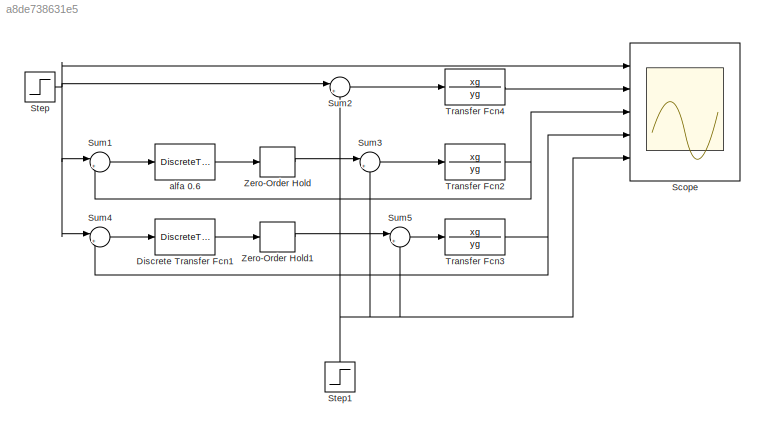
MODEL slx_a8de738631e5
KIND model
CONFIG AbsTol = auto
CONFIG EnableMultiTasking = off
CONFIG FixedStep = auto
CONFIG MaxStep = auto
CONFIG MinStep = auto
CONFIG RelTol = 1e-3
CONFIG SampleTimeConstraint = Unconstrained
CONFIG Solver = VariableStepAuto
CONFIG SolverName = VariableStepAuto
CONFIG StartTime = 0.0
CONFIG StopTime = 10.0
BLOCK [DiscreteTransferFcn] Discrete Transfer Fcn1
  Denominator = y
  InputPortMap = u0
  Numerator = x
  Ports = [1, 1]
  SampleTime = 0.03
BLOCK [Scope] Scope
  Floating = off
  NumInputPorts = 5
  Ports = [5]
  ScopeSpecificationString = Simulink.scopes.TimeScopeBlockCfg('CurrentConfiguration', extmgr.ConfigurationSet(extmgr.Configuration('Core','General UI',true),extmgr.Configuration('Core','Source UI',true),extmgr.Configuration('Sources','WiredSimulink',true),extmgr.Configuration('Visuals','Time Domain',true,'SerializedDisplays',{struct('MinYLimReal','-0.24552','MaxYLimReal','2.2097','YLabelReal','','MinYLimMag','0.00000','MaxYL...<+1502ch>
BLOCK [Step] Step
  SampleTime = 0.001
  Time = 0.5
BLOCK [Step] Step1
  NameLocation = right
  SampleTime = 0.001
  Time = 5
BLOCK [Sum] Sum1
  Inputs = |+-
  Ports = [2, 1]
BLOCK [Sum] Sum2
  Inputs = |++
  Ports = [2, 1]
BLOCK [Sum] Sum3
  Inputs = |++
  Ports = [2, 1]
BLOCK [Sum] Sum4
  Inputs = |+-
  Ports = [2, 1]
BLOCK [Sum] Sum5
  Inputs = |++
  Ports = [2, 1]
BLOCK [TransferFcn] Transfer Fcn2
  Denominator = yg
  Numerator = xg
BLOCK [TransferFcn] Transfer Fcn3
  Denominator = yg
  Numerator = xg
BLOCK [TransferFcn] Transfer Fcn4
  Denominator = yg
  Numerator = xg
BLOCK [ZeroOrderHold] Zero-Order Hold
  SampleTime = 0.03
BLOCK [ZeroOrderHold] Zero-Order Hold1
  SampleTime = 0.03
BLOCK [DiscreteTransferFcn] alfa 0.6
  Denominator = [1 -1.749 0.749]
  InputPortMap = u0
  Numerator = [1.188 -2.132 0.954]
  Ports = [1, 1]
  SampleTime = 0.03
LINE Discrete Transfer Fcn1:1 -> Zero-Order Hold1:1
NET Step1:1 -> Scope:5, Sum2:2, Sum3:2, Sum5:2
NET Step:1 -> Scope:1, Sum1:1, Sum2:1, Sum4:1
LINE Sum1:1 -> alfa 0.6:1
LINE Sum2:1 -> Transfer Fcn4:1
LINE Sum3:1 -> Transfer Fcn2:1
LINE Sum4:1 -> Discrete Transfer Fcn1:1
LINE Sum5:1 -> Transfer Fcn3:1
NET Transfer Fcn2:1 -> Scope:3, Sum1:2
NET Transfer Fcn3:1 -> Scope:4, Sum4:2
LINE Transfer Fcn4:1 -> Scope:2
LINE Zero-Order Hold1:1 -> Sum5:1
LINE Zero-Order Hold:1 -> Sum3:1
LINE alfa 0.6:1 -> Zero-Order Hold:1
note: NET lines group one-source signal fan-out (src -> all destinations, sorted); 1:1 wires keep LINE
